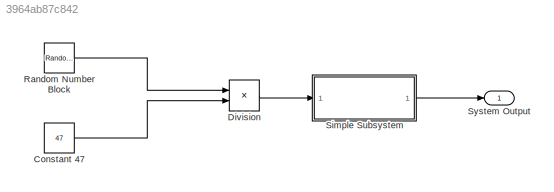
MODEL slx_3964ab87c842
KIND model
CONFIG AbsTol = auto
CONFIG EnableMultiTasking = off
CONFIG FixedStep = auto
CONFIG MaxStep = auto
CONFIG MinStep = auto
CONFIG RelTol = 1e-3
CONFIG SampleTimeConstraint = Unconstrained
CONFIG SolverName = VariableStepAuto
CONFIG StartTime = 0.0
CONFIG StopTime = 10.0
BLOCK [Constant] Constant 47
  Value = 47
BLOCK [Product] Division
  Inputs = */
BLOCK [RandomNumber] Random Number Block
  SampleTime = 0.1
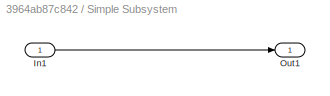
BLOCK [SubSystem] Simple Subsystem
BLOCK [Inport] Simple Subsystem/In1
BLOCK [Outport] Simple Subsystem/Out1
BLOCK [Outport] System Output
LINE Constant 47:1 -> Division:2
LINE Division:1 -> Simple Subsystem:1
LINE Random Number Block:1 -> Division:1
LINE Simple Subsystem/In1:1 -> Simple Subsystem/Out1:1
LINE Simple Subsystem:1 -> System Output:1
